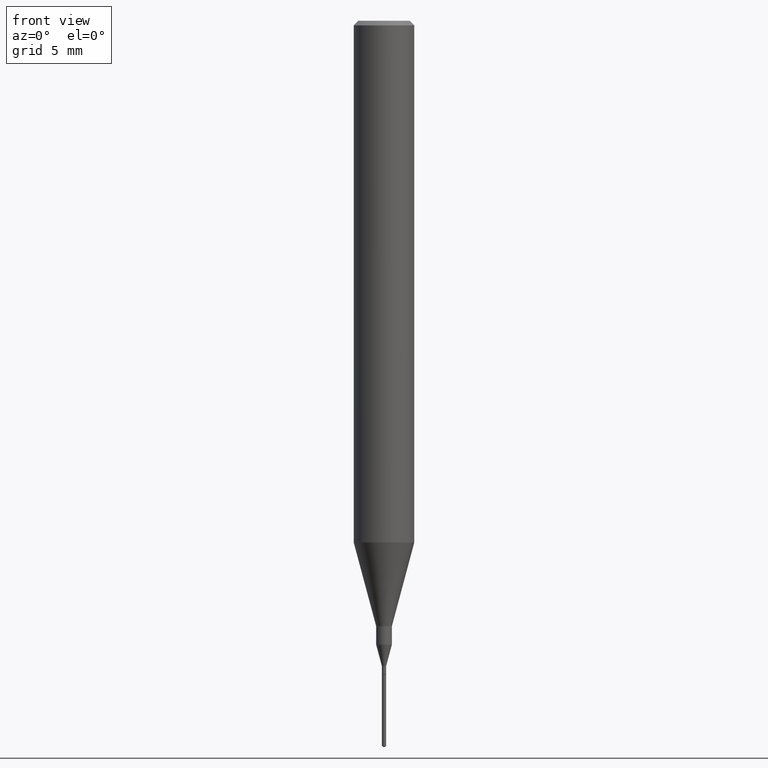
[diagram: clean part render]
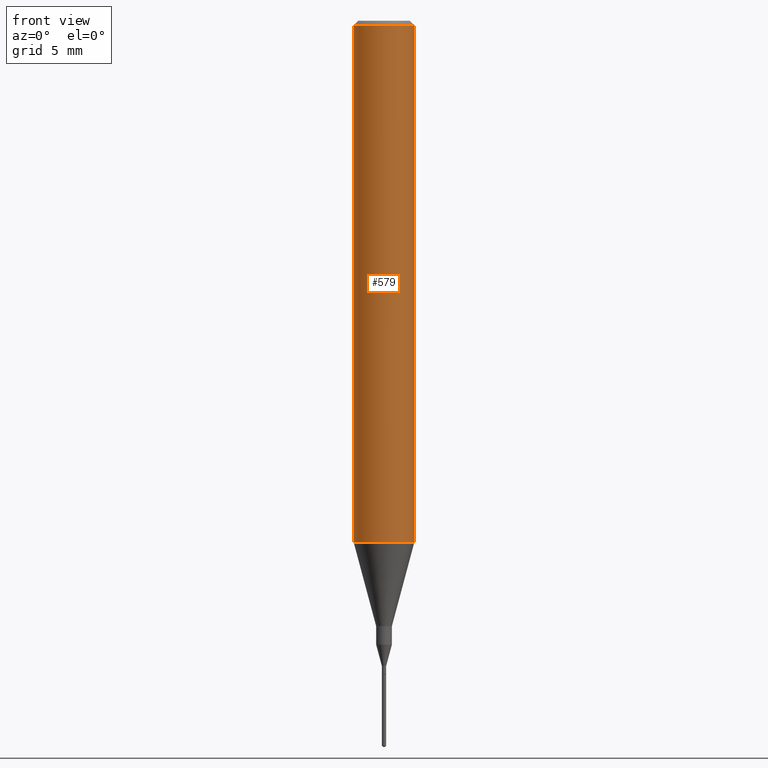
[diagram: same view with one face highlighted and labeled with its STEP entity id]
A machine part, front view. The second image highlights one B-rep face of the part: STEP entity #579.
In plain terms, the highlighted cylindrical surface (edge-blend (fillet) strip) has radius 1.5875 mm, axis along (-0, 0, 1).
Its self-contained STEP definition (entity closure, byte-faithful):
#1 = CARTESIAN_POINT ( 'NONE',  ( -0.06250000000000006939, 4.440892098500631092E-16, -3.074334431409319267E-30 ) ) ;
#30 = VERTEX_POINT ( 'NONE', #522 ) ;
#42 = AXIS2_PLACEMENT_3D ( 'NONE', #590, #508, #443 ) ;
#48 = FACE_OUTER_BOUND ( 'NONE', #417, .T. ) ;
#61 = VERTEX_POINT ( 'NONE', #105 ) ;
#89 = DIRECTION ( 'NONE',  ( -2.445468806185136597E-29, 3.491481338843145583E-15, 1.000000000000000000 ) ) ;
#91 = VECTOR ( 'NONE', #244, 39.37007874015748143 ) ;
#105 = CARTESIAN_POINT ( 'NONE',  ( 0.06250000000000012490, -4.198131499960668153E-15, -1.077392650149939346 ) ) ;
#127 = LINE ( 'NONE', #328, #553 ) ;
#145 = CARTESIAN_POINT ( 'NONE',  ( 2.292627005798580623E-31, -3.273263755165470801E-17, -0.009375000000000062103 ) ) ;
#195 = LINE ( 'NONE', #1, #91 ) ;
#244 = DIRECTION ( 'NONE',  ( -2.445468806185136877E-29, 3.491481338843145188E-15, 1.000000000000000000 ) ) ;
#251 = AXIS2_PLACEMENT_3D ( 'NONE', #145, #373, #284 ) ;
#265 = ORIENTED_EDGE ( 'NONE', *, *, #410, .F. ) ;
#273 = VERTEX_POINT ( 'NONE', #416 ) ;
#284 = DIRECTION ( 'NONE',  ( 1.000000000000000000, -6.982962677686266711E-15, 0.000000000000000000 ) ) ;
#320 = CIRCLE ( 'NONE', #42, 0.06250000000000012490 ) ;
#325 = VERTEX_POINT ( 'NONE', #446 ) ;
#328 = CARTESIAN_POINT ( 'NONE',  ( 0.06250000000000006939, -4.364351673553921624E-16, 3.047610484872463374E-30 ) ) ;
#329 = ORIENTED_EDGE ( 'NONE', *, *, #550, .F. ) ;
#350 = EDGE_CURVE ( 'NONE', #61, #273, #127, .T. ) ;
#373 = DIRECTION ( 'NONE',  ( -2.445468806185136597E-29, 3.491481338843145583E-15, 1.000000000000000000 ) ) ;
#410 = EDGE_CURVE ( 'NONE', #30, #273, #488, .T. ) ;
#416 = CARTESIAN_POINT ( 'NONE',  ( 0.06250000000000000000, -4.691678049070463404E-16, -0.009375000000000062103 ) ) ;
#417 = EDGE_LOOP ( 'NONE', ( #329, #421, #519, #265 ) ) ;
#421 = ORIENTED_EDGE ( 'NONE', *, *, #425, .T. ) ;
#425 = EDGE_CURVE ( 'NONE', #325, #61, #320, .T. ) ;
#443 = DIRECTION ( 'NONE',  ( 1.000000000000000000, -6.982962677686264344E-15, 0.000000000000000000 ) ) ;
#446 = CARTESIAN_POINT ( 'NONE',  ( -0.06250000000000012490, -3.317607122755211895E-15, -1.077392650149939346 ) ) ;
#454 = DIRECTION ( 'NONE',  ( 1.000000000000000000, -6.982962677686266711E-15, 4.876176775795935793E-29 ) ) ;
#463 = CARTESIAN_POINT ( 'NONE',  ( 0.000000000000000000, 0.000000000000000000, 0.000000000000000000 ) ) ;
#488 = CIRCLE ( 'NONE', #251, 0.06250000000000000000 ) ;
#507 = CYLINDRICAL_SURFACE ( 'NONE', #542, 0.06250000000000006939 ) ;
#508 = DIRECTION ( 'NONE',  ( -2.445468806185136597E-29, 3.491481338843145583E-15, 1.000000000000000000 ) ) ;
#519 = ORIENTED_EDGE ( 'NONE', *, *, #350, .T. ) ;
#522 = CARTESIAN_POINT ( 'NONE',  ( -0.06250000000000000000, -1.453125275228401137E-15, -0.009375000000000062103 ) ) ;
#542 = AXIS2_PLACEMENT_3D ( 'NONE', #463, #89, #454 ) ;
#550 = EDGE_CURVE ( 'NONE', #325, #30, #195, .T. ) ;
#551 = DIRECTION ( 'NONE',  ( -2.445468806185136877E-29, 3.491481338843145188E-15, 1.000000000000000000 ) ) ;
#553 = VECTOR ( 'NONE', #551, 39.37007874015748143 ) ;
#579 = ADVANCED_FACE ( 'NONE', ( #48 ), #507, .T. ) ;
#590 = CARTESIAN_POINT ( 'NONE',  ( 2.634730117954813298E-29, -3.761696332605275695E-15, -1.077392650149939346 ) ) ;